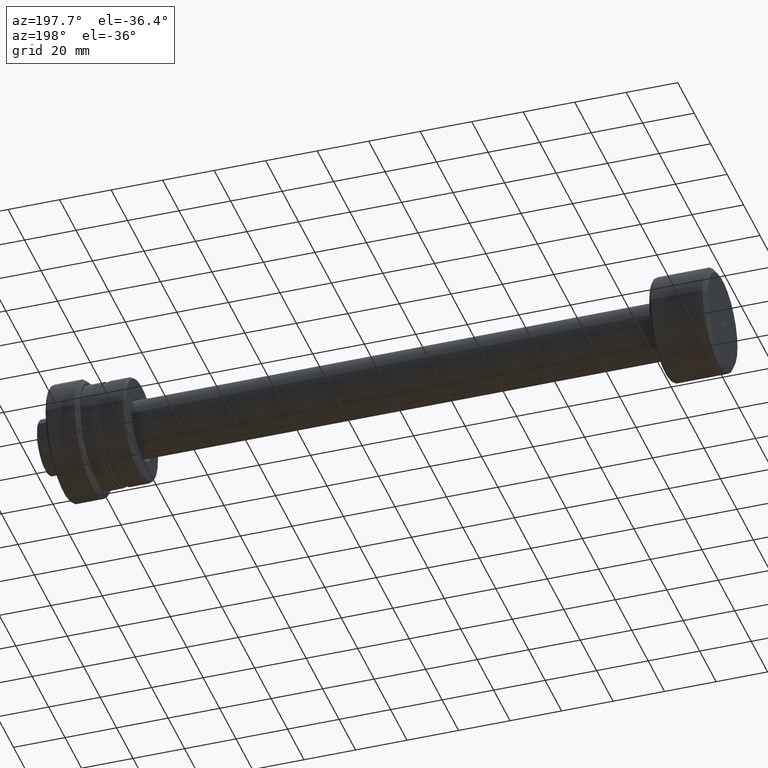
[diagram: clean part render]
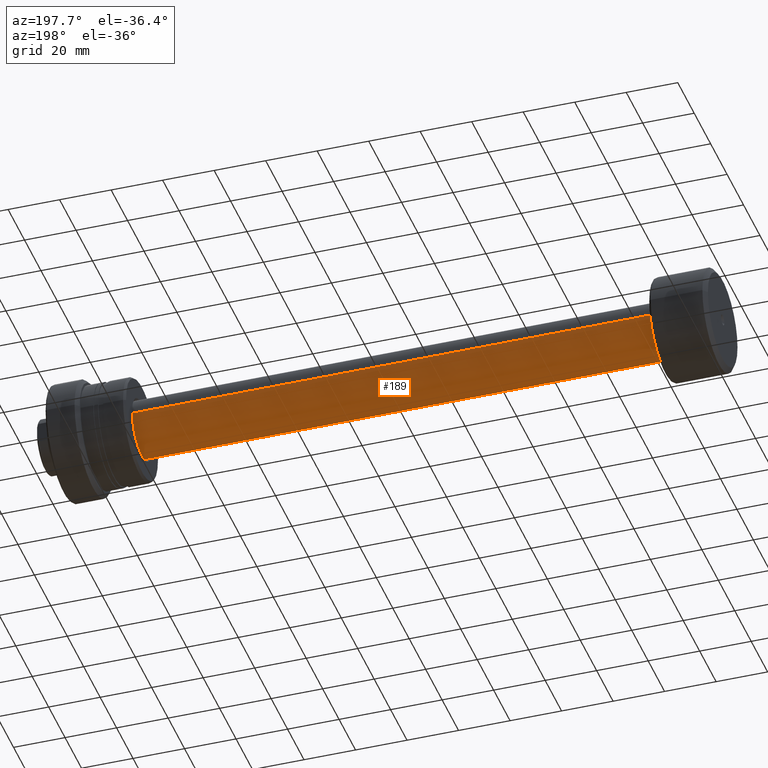
[diagram: same view with one face highlighted and labeled with its STEP entity id]
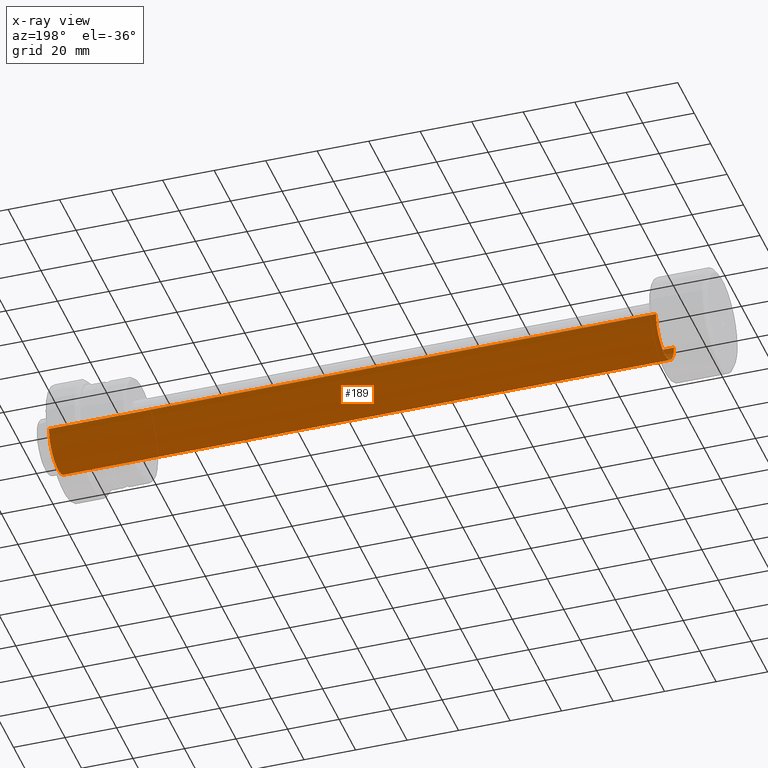
[diagram: x-ray of the same camera — body ghosted, the highlighted face saturated]
A machine part, auxiliary view. The second image highlights one B-rep face of the part: STEP entity #189.
The next image is the same camera in x-ray: the body ghosted, the highlighted face saturated — about 0% of this face is hidden behind the body in this view.
In plain terms, the highlighted cylindrical surface (edge-blend (fillet) strip) has radius 11 mm, axis along (-1, -0, -0).
Its self-contained STEP definition (entity closure, byte-faithful):
#46 = FACE_OUTER_BOUND ( 'NONE', #2043, .T. ) ;
#88 = CARTESIAN_POINT ( 'NONE',  ( 1.176496554275982935E-16, -11.00000000000009770, 0.000000000000000000 ) ) ;
#95 = ORIENTED_EDGE ( 'NONE', *, *, #1737, .T. ) ;
#106 = CARTESIAN_POINT ( 'NONE',  ( 258.0667575123237611, 11.00000000000020073, 1.347111479062112859E-15 ) ) ;
#173 = CARTESIAN_POINT ( 'NONE',  ( -1.176496554275982935E-16, 11.00000000000009770, 1.347111479062100632E-15 ) ) ;
#189 = ADVANCED_FACE ( 'NONE', ( #46 ), #600, .T. ) ;
#208 = CIRCLE ( 'NONE', #1481, 11.00000000000019718 ) ;
#209 = VECTOR ( 'NONE', #1865, 1000.000000000000000 ) ;
#230 = CARTESIAN_POINT ( 'NONE',  ( 0.000000000000000000, 0.000000000000000000, 0.000000000000000000 ) ) ;
#518 = CARTESIAN_POINT ( 'NONE',  ( 258.0667575123237611, 2.760133190785652966E-15, 0.000000000000000000 ) ) ;
#532 = DIRECTION ( 'NONE',  ( -1.000000000000000000, -1.069542322069065801E-17, -0.000000000000000000 ) ) ;
#600 = CYLINDRICAL_SURFACE ( 'NONE', #1027, 11.00000000000009770 ) ;
#655 = CARTESIAN_POINT ( 'NONE',  ( 22.40000000000000924, 2.395774801434708725E-16, 0.000000000000000000 ) ) ;
#754 = LINE ( 'NONE', #173, #209 ) ;
#762 = CIRCLE ( 'NONE', #2153, 11.00000000000000000 ) ;
#787 = VERTEX_POINT ( 'NONE', #1385 ) ;
#994 = DIRECTION ( 'NONE',  ( 1.069542322069065955E-17, -1.000000000000000000, 0.000000000000000000 ) ) ;
#1017 = VERTEX_POINT ( 'NONE', #1297 ) ;
#1027 = AXIS2_PLACEMENT_3D ( 'NONE', #230, #1599, #994 ) ;
#1276 = DIRECTION ( 'NONE',  ( 0.000000000000000000, -1.000000000000000000, 0.000000000000000000 ) ) ;
#1297 = CARTESIAN_POINT ( 'NONE',  ( 22.40000000000000924, 11.00000000000000000, 1.347111479062094518E-15 ) ) ;
#1365 = DIRECTION ( 'NONE',  ( -1.000000000000000000, -1.069542322069065801E-17, -0.000000000000000000 ) ) ;
#1385 = CARTESIAN_POINT ( 'NONE',  ( 258.0667575123237611, -11.00000000000019362, 0.000000000000000000 ) ) ;
#1425 = DIRECTION ( 'NONE',  ( 0.000000000000000000, -1.000000000000000000, 0.000000000000000000 ) ) ;
#1481 = AXIS2_PLACEMENT_3D ( 'NONE', #518, #532, #1276 ) ;
#1599 = DIRECTION ( 'NONE',  ( -1.000000000000000000, -1.069542322069065801E-17, -0.000000000000000000 ) ) ;
#1737 = EDGE_CURVE ( 'NONE', #2061, #787, #208, .T. ) ;
#1865 = DIRECTION ( 'NONE',  ( -1.000000000000000000, -1.069542322069065801E-17, -0.000000000000000000 ) ) ;
#1878 = EDGE_CURVE ( 'NONE', #1017, #2126, #762, .T. ) ;
#2043 = EDGE_LOOP ( 'NONE', ( #2368, #95, #2262, #2168 ) ) ;
#2061 = VERTEX_POINT ( 'NONE', #106 ) ;
#2126 = VERTEX_POINT ( 'NONE', #2253 ) ;
#2150 = EDGE_CURVE ( 'NONE', #2061, #1017, #754, .T. ) ;
#2153 = AXIS2_PLACEMENT_3D ( 'NONE', #655, #1365, #1425 ) ;
#2162 = DIRECTION ( 'NONE',  ( -1.000000000000000000, -1.069542322069065801E-17, -0.000000000000000000 ) ) ;
#2168 = ORIENTED_EDGE ( 'NONE', *, *, #1878, .F. ) ;
#2253 = CARTESIAN_POINT ( 'NONE',  ( 22.40000000000000924, -11.00000000000000000, 0.000000000000000000 ) ) ;
#2262 = ORIENTED_EDGE ( 'NONE', *, *, #2386, .T. ) ;
#2273 = VECTOR ( 'NONE', #2162, 1000.000000000000000 ) ;
#2340 = LINE ( 'NONE', #88, #2273 ) ;
#2368 = ORIENTED_EDGE ( 'NONE', *, *, #2150, .F. ) ;
#2386 = EDGE_CURVE ( 'NONE', #787, #2126, #2340, .T. ) ;